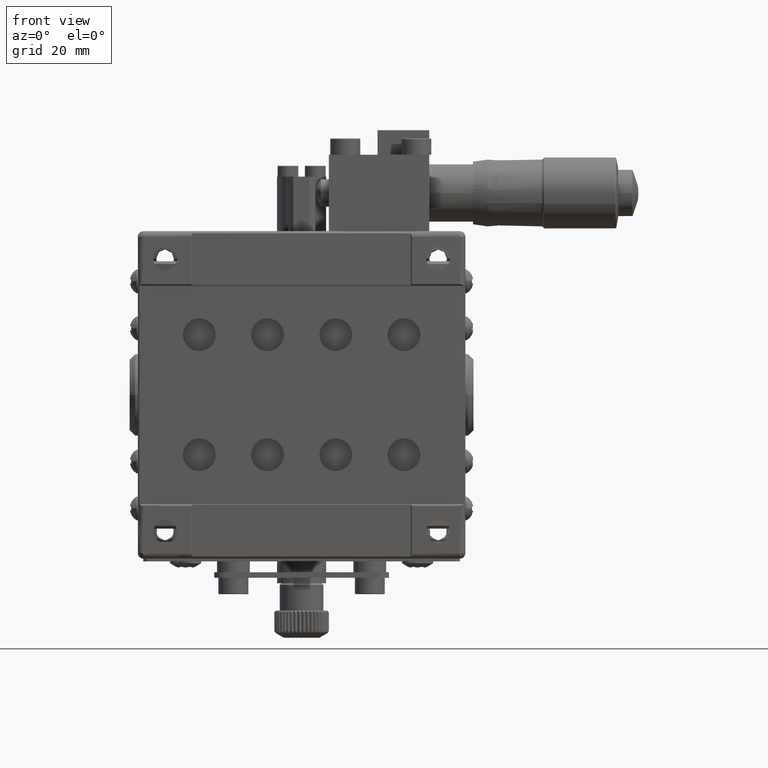
[diagram: clean part render]
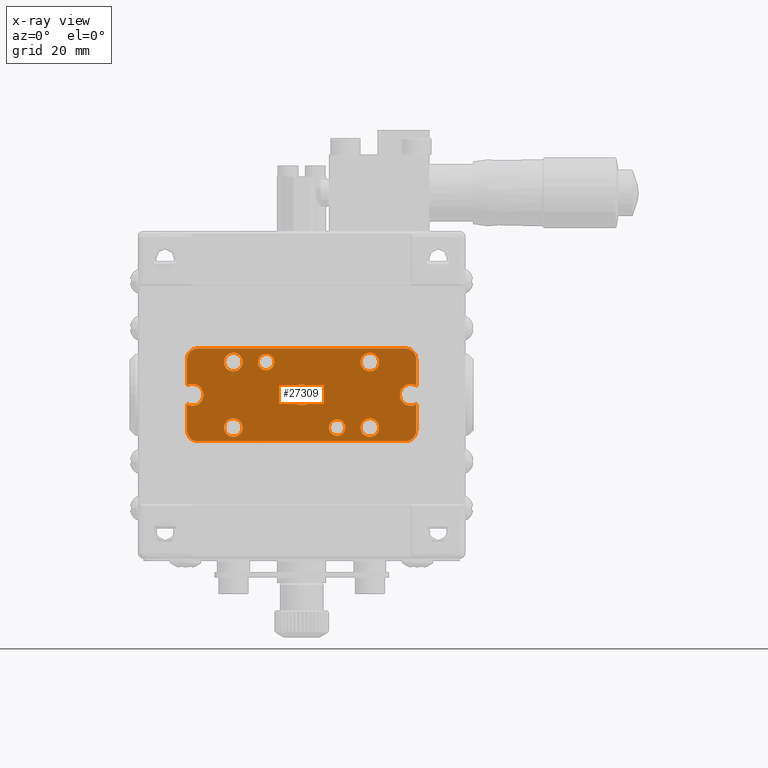
[diagram: x-ray — body ghosted, one internal face saturated and labeled with its STEP entity id]
A machine part, front view, then the same camera in x-ray: the body is ghosted and one INTERNAL B-rep face — a face not visible from any outside direction — is saturated and labeled: STEP entity #27309.
In plain terms, the highlighted planar face has unit normal (0, -1, 0).
Its self-contained STEP definition (entity closure, byte-faithful):
#76 = ORIENTED_EDGE ( 'NONE', *, *, #16630, .F. ) ;
#425 = EDGE_LOOP ( 'NONE', ( #31403, #67581 ) ) ;
#633 = EDGE_LOOP ( 'NONE', ( #48421, #48827 ) ) ;
#1058 = FACE_BOUND ( 'NONE', #68379, .T. ) ;
#1188 = CARTESIAN_POINT ( 'NONE',  ( -10.83651385598294148, -79.90000000000000568, 6.416496190602586580 ) ) ;
#1523 = CARTESIAN_POINT ( 'NONE',  ( -13.53610870402283695, -79.90000000000000568, 4.631945647988584547 ) ) ;
#1551 = CARTESIAN_POINT ( 'NONE',  ( -12.49999999999999467, -79.90000000000000568, -4.299999999999999822 ) ) ;
#1577 = CARTESIAN_POINT ( 'NONE',  ( -12.29965307866380897, -79.90000000000000568, 4.300000000000006040 ) ) ;
#1584 = CARTESIAN_POINT ( 'NONE',  ( -21.00000000000000355, -79.90000000000000568, 1.732050807568873863 ) ) ;
#1602 = CARTESIAN_POINT ( 'NONE',  ( 13.53610870402283339, -79.90000000000000568, -4.631945647988578330 ) ) ;
#1789 = CARTESIAN_POINT ( 'NONE',  ( -12.91649619060258836, -79.90000000000001990, -4.336513855982941479 ) ) ;
#1959 = CARTESIAN_POINT ( 'NONE',  ( -10.79999999999999893, -79.90000000000000568, 6.200346921336190142 ) ) ;
#1985 = CARTESIAN_POINT ( 'NONE',  ( 13.33502582190779151, -79.90000000000000568, -7.497794079595196060 ) ) ;
#1987 = CARTESIAN_POINT ( 'NONE',  ( 19.01761668010850315, -79.90000000000000568, -1.762110681876702722 ) ) ;
#2061 = CARTESIAN_POINT ( 'NONE',  ( -6.499999999999997335, -79.90000000000000568, 4.500000000000007994 ) ) ;
#2291 = CARTESIAN_POINT ( 'NONE',  ( -14.19999999999999396, -79.90000000000000568, 5.799653078663815187 ) ) ;
#2469 = CARTESIAN_POINT ( 'NONE',  ( 13.86805435201142167, -79.90000000000000568, 7.036108704022844051 ) ) ;
#2673 = CARTESIAN_POINT ( 'NONE',  ( -0.9332641538969292938, -79.90000000000000568, -1.674005147782867908 ) ) ;
#2763 = CARTESIAN_POINT ( 'NONE',  ( 18.23788931812329395, -79.90000000000000568, 0.9823833198915113973 ) ) ;
#3073 = CARTESIAN_POINT ( 'NONE',  ( -19.51000448164401746, -79.90000000000000568, 1.957042522373018123 ) ) ;
#3455 = CARTESIAN_POINT ( 'NONE',  ( -18.00000000000000355, -79.90000000000001990, 0.2357022603955210016 ) ) ;
#3663 = CARTESIAN_POINT ( 'NONE',  ( -11.66497417809221382, -79.90000000000000568, -4.502205920404796835 ) ) ;
#3708 = CARTESIAN_POINT ( 'NONE',  ( 5.585786437626912182, -79.90000000000000568, -7.207106781186543465 ) ) ;
#4166 = VERTEX_POINT ( 'NONE', #48046 ) ;
#4366 = CARTESIAN_POINT ( 'NONE',  ( -7.236787489918622640, -79.90000000000000568, 4.678416988592474013 ) ) ;
#4445 = CARTESIAN_POINT ( 'NONE',  ( 20.00000000000000000, -79.90000000000000568, -1.999999999999991340 ) ) ;
#4533 = CARTESIAN_POINT ( 'NONE',  ( -5.763212510081369366, -79.90000000000000568, 7.321583011407529540 ) ) ;
#4556 = CARTESIAN_POINT ( 'NONE',  ( 19.98238313581505921, -79.90000000000000568, -8.262110695583814390 ) ) ;
#4710 = CARTESIAN_POINT ( 'NONE',  ( 11.46389129597717549, -79.90000000000000568, -4.631945647988578330 ) ) ;
#4896 = CARTESIAN_POINT ( 'NONE',  ( 20.95704252237304388, -79.90000000000003411, 6.989995518355982540 ) ) ;
#4920 = CARTESIAN_POINT ( 'NONE',  ( -5.585786437626905965, -79.90000000000000568, 4.792893218813459200 ) ) ;
#5082 = EDGE_CURVE ( 'NONE', #30564, #59545, #37406, .T. ) ;
#5287 = CARTESIAN_POINT ( 'NONE',  ( 20.76211068187673803, -79.90000000000000568, 7.482383319891504847 ) ) ;
#5308 = CARTESIAN_POINT ( 'NONE',  ( -5.763212510081369366, -79.90000000000000568, 4.678416988592474013 ) ) ;
#6274 = CARTESIAN_POINT ( 'NONE',  ( -12.49999999999999645, -79.90000000000000568, -7.699999999999994849 ) ) ;
#6615 = EDGE_LOOP ( 'NONE', ( #21653, #48783 ) ) ;
#6998 = CARTESIAN_POINT ( 'NONE',  ( -12.08350380939740987, -79.90000000000000568, 4.336513855982946808 ) ) ;
#7200 = VERTEX_POINT ( 'NONE', #57799 ) ;
#7208 = CARTESIAN_POINT ( 'NONE',  ( -13.99779407959519872, -79.90000000000000568, -6.835025821907778187 ) ) ;
#7258 = EDGE_LOOP ( 'NONE', ( #71013, #43072 ) ) ;
#7393 = CARTESIAN_POINT ( 'NONE',  ( 12.50000000000000355, -79.90000000000001990, -4.299999999999999822 ) ) ;
#7593 = CARTESIAN_POINT ( 'NONE',  ( -12.49999999999999645, -79.90000000000000568, -7.699999999999994849 ) ) ;
#7604 = DIRECTION ( 'NONE',  ( -3.103381831646717575E-15, -0.000000000000000000, -1.000000000000000000 ) ) ;
#7775 = CARTESIAN_POINT ( 'NONE',  ( 12.91649619060260257, -79.90000000000000568, -7.663486144017054968 ) ) ;
#7966 = CARTESIAN_POINT ( 'NONE',  ( -13.33502582190777730, -79.90000000000000568, -4.502205920404797723 ) ) ;
#8078 = CARTESIAN_POINT ( 'NONE',  ( -13.33502582190777730, -79.90000000000000568, 7.497794079595206718 ) ) ;
#8184 = CARTESIAN_POINT ( 'NONE',  ( 20.17254603006834657, -79.90000000000000568, 2.000000000000004885 ) ) ;
#8232 = CARTESIAN_POINT ( 'NONE',  ( -20.00000000000000000, -79.90000000000000568, -1.999999999999990452 ) ) ;
#8400 = EDGE_CURVE ( 'NONE', #7200, #22042, #11125, .T. ) ;
#8431 = CARTESIAN_POINT ( 'NONE',  ( -18.99999999999998934, -79.90000000000001990, -8.499999999999964473 ) ) ;
#8540 = CARTESIAN_POINT ( 'NONE',  ( -20.76211045826631718, -79.90000000000000568, -7.482383202763269736 ) ) ;
#8647 = CARTESIAN_POINT ( 'NONE',  ( -19.48999551835600386, -79.90000000000001990, 8.457042522373015458 ) ) ;
#8682 = CARTESIAN_POINT ( 'NONE',  ( -11.00220592040479417, -79.90000000000000568, -5.164974178092218260 ) ) ;
#8864 = CARTESIAN_POINT ( 'NONE',  ( -19.01761668010849604, -79.90000000000000568, -1.762110681876702056 ) ) ;
#8925 = CARTESIAN_POINT ( 'NONE',  ( 14.16348614401706740, -79.90000000000000568, -5.583503809397412532 ) ) ;
#8926 = CARTESIAN_POINT ( 'NONE',  ( 18.78104858350253892, -79.90000000000000568, -1.609475708248722992 ) ) ;
#9026 = CARTESIAN_POINT ( 'NONE',  ( 14.16348614401707096, -79.90000000000000568, 5.583503809397420525 ) ) ;
#9442 = ORIENTED_EDGE ( 'NONE', *, *, #20196, .F. ) ;
#9460 = B_SPLINE_CURVE_WITH_KNOTS ( 'NONE', 3,
 ( #23467, #11065, #29250, #47090, #70723, #46712, #5287, #4896, #41275, #34680 ),
 .UNSPECIFIED., .F., .F.,
 ( 4, 2, 2, 2, 4 ),
 ( 0.000000000000000000, 0.7853981633974509435, 1.570796326794901887, 2.356194490192351054, 3.141592653589800221 ),
 .UNSPECIFIED. ) ;
#9664 = VERTEX_POINT ( 'NONE', #33940 ) ;
#9714 = CARTESIAN_POINT ( 'NONE',  ( 12.50000000000000355, -79.90000000000000568, -7.699999999999995737 ) ) ;
#9876 = CARTESIAN_POINT ( 'NONE',  ( 5.585786437626909517, -79.90000000000000568, -4.792893218813459200 ) ) ;
#9915 = ORIENTED_EDGE ( 'NONE', *, *, #19515, .T. ) ;
#9972 = CARTESIAN_POINT ( 'NONE',  ( -19.23570226039549169, -79.90000000000000568, -8.499999920527114838 ) ) ;
#11065 = CARTESIAN_POINT ( 'NONE',  ( 19.23570226039554143, -79.90000000000001990, 8.500000000000005329 ) ) ;
#11125 = B_SPLINE_CURVE_WITH_KNOTS ( 'NONE', 3,
 ( #21763, #33735, #71300, #18228, #29454, #35277, #48433, #41856, #70925, #17853, #29842, #65481, #76350, #41480, #72053, #65108, #64729, #35662 ),
 .UNSPECIFIED., .F., .F.,
 ( 4, 2, 2, 2, 2, 2, 2, 2, 4 ),
 ( 0.000000000000000000, 0.5890486225480825455, 1.178097245096165091, 1.767145867644249080, 2.356194490192333291, 2.945243112740417057, 3.534291735288501712, 4.123340357836584147, 4.712388980384666581 ),
 .UNSPECIFIED. ) ;
#12287 = B_SPLINE_CURVE_WITH_KNOTS ( 'NONE', 3,
 ( #74456, #21030, #68661, #27584, #20273, #26464, #50473, #68285, #15209, #44656, #69038, #38839, #26833, #15588, #14822, #21411, #43895, #73704 ),
 .UNSPECIFIED., .F., .F.,
 ( 4, 2, 2, 2, 2, 2, 2, 2, 4 ),
 ( 0.000000000000000000, 0.6675884388878300379, 1.335176877775660076, 2.002765316663490225, 2.670353755551320152, 3.337942194439150079, 4.005530633326980450, 4.673119072214809933, 5.340707511102640304 ),
 .UNSPECIFIED. ) ;
#12704 = ORIENTED_EDGE ( 'NONE', *, *, #45665, .F. ) ;
#13188 = CARTESIAN_POINT ( 'NONE',  ( -12.49999999999999645, -79.90000000000000568, 7.700000000000000178 ) ) ;
#13424 = FACE_BOUND ( 'NONE', #633, .T. ) ;
#13480 = VERTEX_POINT ( 'NONE', #42674 ) ;
#13506 = CARTESIAN_POINT ( 'NONE',  ( -1.529001922836286331, -79.90000000000000568, 1.158003845672582521 ) ) ;
#13591 = DIRECTION ( 'NONE',  ( -1.862029098988050188E-15, -0.000000000000000000, 1.000000000000000000 ) ) ;
#13900 = CARTESIAN_POINT ( 'NONE',  ( -13.86805435201141279, -79.90000000000000568, 4.963891295977165719 ) ) ;
#14125 = CARTESIAN_POINT ( 'NONE',  ( -11.46389129597715772, -79.90000000000000568, -7.368054352011416341 ) ) ;
#14175 = CARTESIAN_POINT ( 'NONE',  ( -13.33502582190777730, -79.90000000000000568, -7.497794079595197836 ) ) ;
#14199 = DIRECTION ( 'NONE',  ( 1.000000000000000000, 0.000000000000000000, 0.000000000000000000 ) ) ;
#14390 = CARTESIAN_POINT ( 'NONE',  ( 20.99999999999999645, -79.90000000000000568, 1.732050807568883855 ) ) ;
#14472 = CARTESIAN_POINT ( 'NONE',  ( 12.91649619060259546, -79.90000000000001990, 7.663486144017062074 ) ) ;
#14478 = CARTESIAN_POINT ( 'NONE',  ( -20.60947570824874120, -79.90000000000000568, 7.718951416497460194 ) ) ;
#14514 = CARTESIAN_POINT ( 'NONE',  ( -10.83651385598294326, -79.90000000000000568, -6.416496190602582139 ) ) ;
#14666 = CARTESIAN_POINT ( 'NONE',  ( -13.99779407959519872, -79.90000000000000568, 6.835025821907782628 ) ) ;
#14763 = CARTESIAN_POINT ( 'NONE',  ( 20.85057075463865672, -79.90000000000001990, 1.818323822603056472 ) ) ;
#14822 = CARTESIAN_POINT ( 'NONE',  ( 11.66497417809222625, -79.90000000000000568, 7.497794079595206718 ) ) ;
#14840 = CARTESIAN_POINT ( 'NONE',  ( 14.20000000000000462, -79.90000000000000568, 6.200346921336190142 ) ) ;
#14880 = CARTESIAN_POINT ( 'NONE',  ( -10.79999999999999893, -79.90000000000000568, -5.799653078663809858 ) ) ;
#14934 = CARTESIAN_POINT ( 'NONE',  ( 5.000000000000007994, -79.90000000000000568, -5.823223304703365244 ) ) ;
#15066 = CARTESIAN_POINT ( 'NONE',  ( -19.99999999999999645, -79.90000000000000568, 2.000000000000003553 ) ) ;
#15204 = CARTESIAN_POINT ( 'NONE',  ( -7.707106781186539912, -79.89999999999999147, 5.085786437626908629 ) ) ;
#15209 = CARTESIAN_POINT ( 'NONE',  ( 10.80000000000000249, -79.90000000000000568, 5.799653078663815187 ) ) ;
#15307 = ORIENTED_EDGE ( 'NONE', *, *, #56655, .F. ) ;
#15536 = CARTESIAN_POINT ( 'NONE',  ( 11.13194564798859076, -79.90000000000000568, -4.963891295977159501 ) ) ;
#15588 = CARTESIAN_POINT ( 'NONE',  ( 11.46389129597717549, -79.90000000000000568, 7.368054352011421670 ) ) ;
#15912 = CARTESIAN_POINT ( 'NONE',  ( 10.80000000000000249, -79.90000000000000568, -5.799653078663809858 ) ) ;
#15942 = B_SPLINE_CURVE_WITH_KNOTS ( 'NONE', 3,
 ( #4445, #73496, #16426, #27656, #40055, #28426 ),
 .UNSPECIFIED., .F., .F.,
 ( 4, 2, 4 ),
 ( 0.000000000000000000, 0.5235987755982889347, 1.047197551196577869 ),
 .UNSPECIFIED. ) ;
#16348 = CARTESIAN_POINT ( 'NONE',  ( -7.967781891779749159, -79.90000000000000568, 6.367496638766986017 ) ) ;
#16370 = CARTESIAN_POINT ( 'NONE',  ( 20.00000000000000000, -79.90000000000000568, 2.000000000000003553 ) ) ;
#16426 = CARTESIAN_POINT ( 'NONE',  ( 20.34808269351821153, -79.90000000000000568, -1.977283884192705399 ) ) ;
#16630 = EDGE_CURVE ( 'NONE', #68446, #31293, #72006, .T. ) ;
#16831 = CARTESIAN_POINT ( 'NONE',  ( -12.49999999999999645, -79.90000000000000568, 4.300000000000003375 ) ) ;
#16935 = CARTESIAN_POINT ( 'NONE',  ( 19.23570222065905355, -79.90000000000000568, -8.499999999999994671 ) ) ;
#17283 = CARTESIAN_POINT ( 'NONE',  ( -6.323223304703364356, -79.90000000000000568, 7.499999999999995559 ) ) ;
#17686 = EDGE_CURVE ( 'NONE', #4166, #9664, #56327, .T. ) ;
#17853 = CARTESIAN_POINT ( 'NONE',  ( 7.999999999999989342, -79.90000000000000568, -5.823223304703361691 ) ) ;
#18228 = CARTESIAN_POINT ( 'NONE',  ( 7.236787489918624416, -79.90000000000000568, -7.321583011407528652 ) ) ;
#18782 = CARTESIAN_POINT ( 'NONE',  ( 20.99999999999996803, -79.90000000000000568, -6.500000000000004441 ) ) ;
#18851 = CARTESIAN_POINT ( 'NONE',  ( 20.99999999999996803, -79.90000000000000568, -6.977994919243120542 ) ) ;
#18995 = CARTESIAN_POINT ( 'NONE',  ( -12.29965307866381252, -79.90000000000000568, 7.700000000000002842 ) ) ;
#19515 = EDGE_CURVE ( 'NONE', #28011, #31293, #35579, .T. ) ;
#19551 = ORIENTED_EDGE ( 'NONE', *, *, #65469, .T. ) ;
#19599 = ORIENTED_EDGE ( 'NONE', *, *, #35335, .F. ) ;
#19795 = CARTESIAN_POINT ( 'NONE',  ( 18.39052429175127301, -79.90000000000000568, 1.218951416497465967 ) ) ;
#19899 = CARTESIAN_POINT ( 'NONE',  ( 13.33502582190778618, -79.90000000000000568, 7.497794079595206718 ) ) ;
#19904 = CARTESIAN_POINT ( 'NONE',  ( -21.00000000000001421, -79.90000000000000568, 6.735702260395516561 ) ) ;
#20009 = B_SPLINE_CURVE_WITH_KNOTS ( 'NONE', 3,
 ( #37210, #43421, #7775, #1985, #31378, #20568, #73615, #60836, #49627, #43030, #8925, #55052, #67048, #1602, #25625, #73243, #72847, #7393 ),
 .UNSPECIFIED., .F., .F.,
 ( 4, 2, 2, 2, 2, 2, 2, 2, 4 ),
 ( 0.000000000000000000, 0.6675884388878300379, 1.335176877775660076, 2.002765316663490225, 2.670353755551320152, 3.337942194439150079, 4.005530633326980450, 4.673119072214809933, 5.340707511102640304 ),
 .UNSPECIFIED. ) ;
#20014 = CARTESIAN_POINT ( 'NONE',  ( -5.817072295949906225E-17, -79.90000000000000568, 1.899999999999992806 ) ) ;
#20123 = CARTESIAN_POINT ( 'NONE',  ( -18.00000000000000355, -79.90000000000001990, -0.2357022603955102880 ) ) ;
#20196 = EDGE_CURVE ( 'NONE', #76412, #58157, #65076, .T. ) ;
#20273 = CARTESIAN_POINT ( 'NONE',  ( 11.46389129597716483, -79.90000000000000568, 4.631945647988584547 ) ) ;
#20295 = CARTESIAN_POINT ( 'NONE',  ( -21.00000000000001421, -79.90000000000000568, 6.500000000000000000 ) ) ;
#20377 = CARTESIAN_POINT ( 'NONE',  ( -12.70034692133618748, -79.90000000000000568, -4.300000000000000711 ) ) ;
#20402 = FACE_OUTER_BOUND ( 'NONE', #58222, .T. ) ;
#20568 = CARTESIAN_POINT ( 'NONE',  ( 13.86805435201142345, -79.90000000000000568, -7.036108704022836946 ) ) ;
#20570 = CARTESIAN_POINT ( 'NONE',  ( 18.23788931812329750, -79.90000000000000568, -0.9823833198915029596 ) ) ;
#20593 = CARTESIAN_POINT ( 'NONE',  ( 20.00000000000000000, -79.90000000000000568, 2.000000000000003553 ) ) ;
#20885 = CARTESIAN_POINT ( 'NONE',  ( -18.39052429175126946, -79.90000000000000568, 1.218951416497465745 ) ) ;
#21030 = CARTESIAN_POINT ( 'NONE',  ( 12.29965307866382140, -79.90000000000000568, 4.300000000000006040 ) ) ;
#21057 = EDGE_CURVE ( 'NONE', #55288, #65067, #43665, .T. ) ;
#21134 = CARTESIAN_POINT ( 'NONE',  ( 5.032218108220255282, -79.90000000000000568, -5.632503361233013983 ) ) ;
#21268 = CARTESIAN_POINT ( 'NONE',  ( -18.04295747762698809, -79.90000000000000568, -0.4899955183559770999 ) ) ;
#21406 = CARTESIAN_POINT ( 'NONE',  ( -6.867496638766981576, -79.90000000000000568, 4.532218108220250841 ) ) ;
#21411 = CARTESIAN_POINT ( 'NONE',  ( 12.08350380939742408, -79.90000000000001990, 7.663486144017062074 ) ) ;
#21428 = CARTESIAN_POINT ( 'NONE',  ( 12.70034692133619814, -79.90000000000000568, 4.300000000000006040 ) ) ;
#21653 = ORIENTED_EDGE ( 'NONE', *, *, #55769, .T. ) ;
#21713 = VECTOR ( 'NONE', #39057, 1000.000000000000000 ) ;
#21763 = CARTESIAN_POINT ( 'NONE',  ( 6.499999999999997335, -79.90000000000000568, -7.499999999999992895 ) ) ;
#21947 = CARTESIAN_POINT ( 'NONE',  ( -5.000000000000004441, -79.90000000000000568, 6.176776695296633868 ) ) ;
#21968 = EDGE_CURVE ( 'NONE', #52154, #65174, #40783, .T. ) ;
#22030 = ORIENTED_EDGE ( 'NONE', *, *, #57268, .T. ) ;
#22042 = VERTEX_POINT ( 'NONE', #68512 ) ;
#22157 = CARTESIAN_POINT ( 'NONE',  ( -7.414213562373092259, -79.90000000000000568, 7.207106781186541689 ) ) ;
#22203 = CARTESIAN_POINT ( 'NONE',  ( 1.158003845672585408, -79.90000000000000568, -1.529001922836287664 ) ) ;
#22277 = CARTESIAN_POINT ( 'NONE',  ( 6.132503361233016648, -79.90000000000001990, -4.532218108220249064 ) ) ;
#22974 = CARTESIAN_POINT ( 'NONE',  ( 1.158003845672580745, -79.90000000000000568, 1.529001922836285221 ) ) ;
#23045 = EDGE_LOOP ( 'NONE', ( #40839, #56066 ) ) ;
#23115 = CARTESIAN_POINT ( 'NONE',  ( -6.132503361233013095, -79.90000000000001990, 7.467781891779753600 ) ) ;
#23231 = ORIENTED_EDGE ( 'NONE', *, *, #60604, .F. ) ;
#23283 = CARTESIAN_POINT ( 'NONE',  ( 10.83651385598294858, -79.90000000000000568, -6.416496190602583916 ) ) ;
#23467 = CARTESIAN_POINT ( 'NONE',  ( 19.00000000000001776, -79.90000000000001990, 8.500000000000003553 ) ) ;
#23984 = B_SPLINE_CURVE_WITH_KNOTS ( 'NONE', 3,
 ( #74611, #40916, #27368, #5308, #4920, #52174, #45958, #57967, #52557, #21947, #33165, #39757, #62987, #69188, #4533, #23115, #17283, #27738 ),
 .UNSPECIFIED., .F., .F.,
 ( 4, 2, 2, 2, 2, 2, 2, 2, 4 ),
 ( 0.000000000000000000, 0.5890486225480833227, 1.178097245096166645, 1.767145867644249968, 2.356194490192333291, 2.945243112740416613, 3.534291735288499936, 4.123340357836583259, 4.712388980384666581 ),
 .UNSPECIFIED. ) ;
#24235 = CARTESIAN_POINT ( 'NONE',  ( 12.50000000000000533, -79.90000000000000568, 7.699999999999999289 ) ) ;
#24691 = EDGE_CURVE ( 'NONE', #26202, #26735, #23984, .T. ) ;
#24793 = ORIENTED_EDGE ( 'NONE', *, *, #5082, .F. ) ;
#24825 = CARTESIAN_POINT ( 'NONE',  ( -11.13194564798858188, -79.90000000000000568, 7.036108704022844051 ) ) ;
#24911 = VECTOR ( 'NONE', #7604, 1000.000000000000000 ) ;
#25053 = CARTESIAN_POINT ( 'NONE',  ( -12.49999999999999467, -79.90000000000000568, -4.299999999999999822 ) ) ;
#25161 = CARTESIAN_POINT ( 'NONE',  ( -12.70034692133618748, -79.90000000000000568, 7.700000000000002842 ) ) ;
#25625 = CARTESIAN_POINT ( 'NONE',  ( 13.33502582190778618, -79.90000000000000568, -4.502205920404796835 ) ) ;
#25627 = CARTESIAN_POINT ( 'NONE',  ( 18.39052429175126946, -79.90000000000000568, -1.218951416497453311 ) ) ;
#25821 = CARTESIAN_POINT ( 'NONE',  ( 0.4654957424381860331, -79.90000000000000568, 1.859190396254355671 ) ) ;
#25918 = CARTESIAN_POINT ( 'NONE',  ( -0.4654957424381805375, -79.90000000000000568, -1.859190396254352784 ) ) ;
#26029 = CARTESIAN_POINT ( 'NONE',  ( 20.68719348689188209, -79.90000000000001990, 1.886419420963565408 ) ) ;
#26107 = CARTESIAN_POINT ( 'NONE',  ( 13.53610870402283339, -79.90000000000000568, 7.368054352011421670 ) ) ;
#26112 = CARTESIAN_POINT ( 'NONE',  ( -20.95704252237302256, -79.90000000000000568, 6.989995518355979875 ) ) ;
#26202 = VERTEX_POINT ( 'NONE', #2061 ) ;
#26298 = CARTESIAN_POINT ( 'NONE',  ( -1.674005147782865910, -79.90000000000001990, 0.9332641538969278505 ) ) ;
#26464 = CARTESIAN_POINT ( 'NONE',  ( 11.13194564798858543, -79.90000000000000568, 4.963891295977165719 ) ) ;
#26672 = CARTESIAN_POINT ( 'NONE',  ( -12.91649619060258303, -79.90000000000000568, 4.336513855982946808 ) ) ;
#26735 = VERTEX_POINT ( 'NONE', #74348 ) ;
#26750 = CARTESIAN_POINT ( 'NONE',  ( 18.04295747762699520, -79.90000000000000568, -0.4899955183559790428 ) ) ;
#26833 = CARTESIAN_POINT ( 'NONE',  ( 11.13194564798859076, -79.90000000000000568, 7.036108704022844051 ) ) ;
#26895 = CARTESIAN_POINT ( 'NONE',  ( -12.08350380939740987, -79.90000000000000568, -7.663486144017054968 ) ) ;
#27055 = CARTESIAN_POINT ( 'NONE',  ( -19.76429773960449054, -79.90000000000001990, -1.999999999999991340 ) ) ;
#27309 = ADVANCED_FACE ( 'NONE', ( #20402, #44017, #42486, #1058, #73062, #61433, #60668, #13424 ), #30826, .T. ) ;
#27316 = CARTESIAN_POINT ( 'NONE',  ( 5.763212510081372919, -79.90000000000000568, -4.678416988592474013 ) ) ;
#27368 = CARTESIAN_POINT ( 'NONE',  ( -6.132503361233013095, -79.90000000000000568, 4.532218108220251729 ) ) ;
#27584 = CARTESIAN_POINT ( 'NONE',  ( 11.66497417809223691, -79.90000000000000568, 4.502205920404802164 ) ) ;
#27656 = CARTESIAN_POINT ( 'NONE',  ( 20.68719348689186432, -79.90000000000000568, -1.886419420963556082 ) ) ;
#27738 = CARTESIAN_POINT ( 'NONE',  ( -6.499999999999997335, -79.90000000000000568, 7.499999999999992895 ) ) ;
#27961 = CARTESIAN_POINT ( 'NONE',  ( -7.821583011407525987, -79.90000000000000568, 5.263212510081372919 ) ) ;
#28011 = VERTEX_POINT ( 'NONE', #40322 ) ;
#28147 = CARTESIAN_POINT ( 'NONE',  ( 19.48999542761320924, -79.90000000000001990, -8.457042522769841142 ) ) ;
#28271 = LINE ( 'NONE', #68960, #28425 ) ;
#28330 = ORIENTED_EDGE ( 'NONE', *, *, #41483, .F. ) ;
#28379 = CARTESIAN_POINT ( 'NONE',  ( 1.859190396254353228, -79.90000000000000568, -0.4654957424381813702 ) ) ;
#28393 = ORIENTED_EDGE ( 'NONE', *, *, #75265, .F. ) ;
#28425 = VECTOR ( 'NONE', #34462, 1000.000000000000000 ) ;
#28426 = CARTESIAN_POINT ( 'NONE',  ( 20.99999999999998224, -79.90000000000000568, -1.732050807568868755 ) ) ;
#28763 = CARTESIAN_POINT ( 'NONE',  ( 1.859190396254356781, -79.90000000000000568, 0.4654957424381834241 ) ) ;
#29250 = CARTESIAN_POINT ( 'NONE',  ( 19.48999551835601096, -79.90000000000000568, 8.457042522373017235 ) ) ;
#29454 = CARTESIAN_POINT ( 'NONE',  ( 7.414213562373094035, -79.90000000000000568, -7.207106781186543465 ) ) ;
#29538 = VERTEX_POINT ( 'NONE', #60231 ) ;
#29842 = CARTESIAN_POINT ( 'NONE',  ( 7.967781891779759817, -79.90000000000000568, -5.632503361233015760 ) ) ;
#30564 = VERTEX_POINT ( 'NONE', #6274 ) ;
#30594 = CARTESIAN_POINT ( 'NONE',  ( -11.00220592040479595, -79.90000000000000568, 5.164974178092223589 ) ) ;
#30724 = ORIENTED_EDGE ( 'NONE', *, *, #37245, .F. ) ;
#30803 = CARTESIAN_POINT ( 'NONE',  ( -13.53610870402283695, -79.90000000000000568, -7.368054352011419006 ) ) ;
#30826 = PLANE ( 'NONE',  #58124 ) ;
#30927 = B_SPLINE_CURVE_WITH_KNOTS ( 'NONE', 3,
 ( #38727, #62332, #73596, #61581, #56165, #74724 ),
 .UNSPECIFIED., .F., .F.,
 ( 4, 2, 4 ),
 ( 0.000000000000000000, 0.5235987755982969283, 1.047197551196593857 ),
 .UNSPECIFIED. ) ;
#31139 = EDGE_CURVE ( 'NONE', #57224, #75779, #65191, .T. ) ;
#31293 = VERTEX_POINT ( 'NONE', #16370 ) ;
#31300 = CARTESIAN_POINT ( 'NONE',  ( -12.91649619060258836, -79.90000000000001990, 7.663486144017062074 ) ) ;
#31352 = CARTESIAN_POINT ( 'NONE',  ( -11.66497417809221027, -79.90000000000000568, 4.502205920404802164 ) ) ;
#31378 = CARTESIAN_POINT ( 'NONE',  ( 13.53610870402284938, -79.90000000000000568, -7.368054352011416341 ) ) ;
#31380 = CARTESIAN_POINT ( 'NONE',  ( 19.76429773960449054, -79.90000000000000568, -1.999999999999993561 ) ) ;
#31403 = ORIENTED_EDGE ( 'NONE', *, *, #60158, .F. ) ;
#31512 = EDGE_CURVE ( 'NONE', #58157, #71917, #28271, .T. ) ;
#31575 = CARTESIAN_POINT ( 'NONE',  ( -14.19999999999999574, -79.90000000000000568, -5.799653078663809858 ) ) ;
#31690 = EDGE_CURVE ( 'NONE', #69152, #47247, #49494, .T. ) ;
#31694 = CARTESIAN_POINT ( 'NONE',  ( -14.16348614401705852, -79.90000000000000568, 5.583503809397420525 ) ) ;
#31701 = EDGE_CURVE ( 'NONE', #65067, #55288, #32781, .T. ) ;
#31750 = CARTESIAN_POINT ( 'NONE',  ( -10.80000000000000071, -79.90000000000000568, 5.799653078663815187 ) ) ;
#31775 = CARTESIAN_POINT ( 'NONE',  ( 19.51000448164402101, -79.90000000000001990, 1.957042522373015903 ) ) ;
#31958 = CARTESIAN_POINT ( 'NONE',  ( -13.99779407959519872, -79.90000000000000568, -5.164974178092218260 ) ) ;
#32310 = CARTESIAN_POINT ( 'NONE',  ( -11.46389129597715772, -79.90000000000000568, -4.631945647988578330 ) ) ;
#32542 = CARTESIAN_POINT ( 'NONE',  ( 18.00000000000001066, -79.90000000000000568, 0.2357022603955208906 ) ) ;
#32564 = CARTESIAN_POINT ( 'NONE',  ( 20.34808269351819021, -79.89999999999997726, 1.977283884192715835 ) ) ;
#32646 = CARTESIAN_POINT ( 'NONE',  ( -19.98238331989152172, -79.90000000000000568, 8.262110681876716711 ) ) ;
#32781 = B_SPLINE_CURVE_WITH_KNOTS ( 'NONE', 3,
 ( #68114, #38292, #25918, #2673, #37516, #61523, #56106, #49542, #55728, #48772, #54974, #26298, #13506, #73912, #61897, #72392, #61139, #67741 ),
 .UNSPECIFIED., .F., .F.,
 ( 4, 2, 2, 2, 2, 2, 2, 2, 4 ),
 ( -5.969026041820584716, -5.222897786593011737, -4.476769531365437871, -3.730641276137864892, -2.984513020910292358, -2.238384765682719379, -1.492256510455145957, -0.7461282552275720903, 0.000000000000000000 ),
 .UNSPECIFIED. ) ;
#33146 = ORIENTED_EDGE ( 'NONE', *, *, #31512, .F. ) ;
#33165 = CARTESIAN_POINT ( 'NONE',  ( -5.032218108220247288, -79.90000000000000568, 6.367496638766985129 ) ) ;
#33333 = CARTESIAN_POINT ( 'NONE',  ( 12.29965307866382496, -79.90000000000000568, -4.300000000000000711 ) ) ;
#33420 = EDGE_CURVE ( 'NONE', #57224, #75779, #12287, .T. ) ;
#33584 = CARTESIAN_POINT ( 'NONE',  ( -20.99999999999998934, -79.90000000000000568, -6.499999999999968914 ) ) ;
#33716 = CARTESIAN_POINT ( 'NONE',  ( 12.50000000000000355, -79.90000000000001990, -4.299999999999999822 ) ) ;
#33735 = CARTESIAN_POINT ( 'NONE',  ( 6.676776695296632980, -79.90000000000000568, -7.499999999999992895 ) ) ;
#33940 = CARTESIAN_POINT ( 'NONE',  ( 12.50000000000000355, -79.90000000000001990, -4.299999999999999822 ) ) ;
#34381 = CARTESIAN_POINT ( 'NONE',  ( -21.00000000000001421, -79.90000000000000568, 6.977994919243111660 ) ) ;
#34462 = DIRECTION ( 'NONE',  ( 1.000000000000000000, -0.000000000000000000, -0.000000000000000000 ) ) ;
#34569 = CARTESIAN_POINT ( 'NONE',  ( -2.695770409715654541E-16, -79.90000000000000568, -1.899999999999993250 ) ) ;
#34680 = CARTESIAN_POINT ( 'NONE',  ( 21.00000000000001066, -79.90000000000000568, 6.499999999999995559 ) ) ;
#34966 = CARTESIAN_POINT ( 'NONE',  ( 1.674005147782870795, -79.90000000000000568, 0.9332641538969297379 ) ) ;
#35046 = B_SPLINE_CURVE_WITH_KNOTS ( 'NONE', 3,
 ( #57986, #70377, #57606, #51414, #64572, #47137, #4556, #28147, #16935, #70767 ),
 .UNSPECIFIED., .F., .F.,
 ( 4, 2, 2, 2, 4 ),
 ( 0.000000000000000000, 0.7853981633974465026, 1.570796326794893005, 2.356194490192339508, 3.141592653589786011 ),
 .UNSPECIFIED. ) ;
#35194 = VERTEX_POINT ( 'NONE', #8431 ) ;
#35277 = CARTESIAN_POINT ( 'NONE',  ( 7.707106781186544353, -79.90000000000003411, -6.914213562373092259 ) ) ;
#35335 = EDGE_CURVE ( 'NONE', #45648, #50608, #35046, .T. ) ;
#35579 = B_SPLINE_CURVE_WITH_KNOTS ( 'NONE', 3,
 ( #66654, #31380, #55054, #1987, #8926, #25627, #20570, #26750, #49239, #32542, #72849, #2763, #19795, #55814, #61603, #31775, #49629, #43423 ),
 .UNSPECIFIED., .F., .F.,
 ( 4, 2, 2, 2, 2, 2, 2, 2, 4 ),
 ( 0.000000000000000000, 0.7853981633974476129, 1.570796326794895226, 2.356194490192343061, 3.141592653589790451, 3.926990816987237842, 4.712388980384686121, 5.497787143782133512, 6.283185307179580903 ),
 .UNSPECIFIED. ) ;
#35662 = CARTESIAN_POINT ( 'NONE',  ( 6.499999999999998224, -79.90000000000000568, -4.500000000000007105 ) ) ;
#35672 = ORIENTED_EDGE ( 'NONE', *, *, #31139, .F. ) ;
#36287 = CARTESIAN_POINT ( 'NONE',  ( -25.20120000000002136, -79.90000000000000568, -10.20119999999999649 ) ) ;
#36642 = CARTESIAN_POINT ( 'NONE',  ( -13.53610870402284405, -79.90000000000000568, -4.631945647988578330 ) ) ;
#37126 = CARTESIAN_POINT ( 'NONE',  ( -14.16348614401705674, -79.90000000000000568, 6.416496190602586580 ) ) ;
#37210 = CARTESIAN_POINT ( 'NONE',  ( 12.50000000000000355, -79.90000000000000568, -7.699999999999995737 ) ) ;
#37245 = EDGE_CURVE ( 'NONE', #61303, #45648, #42845, .T. ) ;
#37318 = CARTESIAN_POINT ( 'NONE',  ( 12.70034692133619991, -79.90000000000000568, 7.700000000000002842 ) ) ;
#37406 = B_SPLINE_CURVE_WITH_KNOTS ( 'NONE', 3,
 ( #50911, #44715, #26895, #51292, #14125, #43953, #67584, #14514, #57100, #14880, #38134, #8682, #68347, #32310, #3663, #74516, #38899, #62511 ),
 .UNSPECIFIED., .F., .F.,
 ( 4, 2, 2, 2, 2, 2, 2, 2, 4 ),
 ( 0.000000000000000000, 0.6675884388878300379, 1.335176877775660076, 2.002765316663490225, 2.670353755551320152, 3.337942194439150079, 4.005530633326980450, 4.673119072214809933, 5.340707511102640304 ),
 .UNSPECIFIED. ) ;
#37412 = CARTESIAN_POINT ( 'NONE',  ( -13.86805435201141279, -79.90000000000000568, -7.036108704022836946 ) ) ;
#37516 = CARTESIAN_POINT ( 'NONE',  ( -1.158003845672584742, -79.90000000000000568, -1.529001922836287886 ) ) ;
#37573 = CARTESIAN_POINT ( 'NONE',  ( -10.83651385598294326, -79.90000000000000568, 5.583503809397420525 ) ) ;
#37734 = B_SPLINE_CURVE_WITH_KNOTS ( 'NONE', 3,
 ( #7593, #49815, #61406, #14175, #30803, #37412, #7208, #42835, #37795, #31575, #55611, #31958, #73427, #36642, #7966, #1789, #20377, #25053 ),
 .UNSPECIFIED., .F., .F.,
 ( 4, 2, 2, 2, 2, 2, 2, 2, 4 ),
 ( 0.000000000000000000, 0.6675884388878300379, 1.335176877775660076, 2.002765316663490225, 2.670353755551320152, 3.337942194439150079, 4.005530633326980450, 4.673119072214809933, 5.340707511102640304 ),
 .UNSPECIFIED. ) ;
#37795 = CARTESIAN_POINT ( 'NONE',  ( -14.19999999999999396, -79.90000000000000568, -6.200346921336186590 ) ) ;
#37913 = CARTESIAN_POINT ( 'NONE',  ( -12.49999999999999645, -79.90000000000000568, 7.700000000000000178 ) ) ;
#37932 = CARTESIAN_POINT ( 'NONE',  ( -20.00000000000000000, -79.90000000000000568, -1.999999999999990452 ) ) ;
#38101 = CARTESIAN_POINT ( 'NONE',  ( -20.21895141649747885, -79.90000000000000568, 8.109475708248730541 ) ) ;
#38134 = CARTESIAN_POINT ( 'NONE',  ( -10.83651385598294148, -79.90000000000000568, -5.583503809397412532 ) ) ;
#38292 = CARTESIAN_POINT ( 'NONE',  ( -0.2239171473757390618, -79.90000000000000568, -1.899999999999993694 ) ) ;
#38310 = CARTESIAN_POINT ( 'NONE',  ( -18.78104858350254602, -79.90000000000004832, -1.609475708248723436 ) ) ;
#38346 = CARTESIAN_POINT ( 'NONE',  ( -12.49999999999999645, -79.90000000000000568, 4.300000000000003375 ) ) ;
#38479 = CARTESIAN_POINT ( 'NONE',  ( 13.99779407959521116, -79.90000000000000568, 6.835025821907782628 ) ) ;
#38727 = CARTESIAN_POINT ( 'NONE',  ( -20.00000000000000000, -79.90000000000000568, -1.999999999999990452 ) ) ;
#38834 = CARTESIAN_POINT ( 'NONE',  ( -6.499999999999997335, -79.90000000000000568, 7.499999999999992895 ) ) ;
#38839 = CARTESIAN_POINT ( 'NONE',  ( 11.00220592040480305, -79.90000000000000568, 6.835025821907782628 ) ) ;
#38899 = CARTESIAN_POINT ( 'NONE',  ( -12.29965307866381252, -79.90000000000000568, -4.300000000000000711 ) ) ;
#39057 = DIRECTION ( 'NONE',  ( -1.862029098988036777E-15, -0.000000000000000000, 1.000000000000000000 ) ) ;
#39066 = CARTESIAN_POINT ( 'NONE',  ( -19.51000448164401746, -79.90000000000001990, -1.957042522373002136 ) ) ;
#39170 = CARTESIAN_POINT ( 'NONE',  ( 11.00220592040480305, -79.90000000000000568, -6.835025821907778187 ) ) ;
#39326 = CARTESIAN_POINT ( 'NONE',  ( 5.292893218813457423, -79.90000000000000568, -6.914213562373094035 ) ) ;
#39698 = LINE ( 'NONE', #57140, #46795 ) ;
#39707 = CARTESIAN_POINT ( 'NONE',  ( 5.032218108220256170, -79.90000000000000568, -6.367496638766987793 ) ) ;
#39757 = CARTESIAN_POINT ( 'NONE',  ( -5.178416988592472237, -79.90000000000000568, 6.736787489918627081 ) ) ;
#39926 = CARTESIAN_POINT ( 'NONE',  ( 10.80000000000000249, -79.90000000000000568, -6.200346921336186590 ) ) ;
#40055 = CARTESIAN_POINT ( 'NONE',  ( 20.85057075463864251, -79.90000000000000568, -1.818323822603049589 ) ) ;
#40188 = B_SPLINE_CURVE_WITH_KNOTS ( 'NONE', 3,
 ( #1584, #47694, #42631, #65880, #54268, #65123 ),
 .UNSPECIFIED., .F., .F.,
 ( 4, 2, 4 ),
 ( 0.000000000000000000, 0.5235987755983009251, 1.047197551196601850 ),
 .UNSPECIFIED. ) ;
#40261 = CARTESIAN_POINT ( 'NONE',  ( 20.99999999999998224, -79.90000000000000568, -1.732050807568868755 ) ) ;
#40322 = CARTESIAN_POINT ( 'NONE',  ( 20.00000000000000000, -79.90000000000000568, -1.999999999999991340 ) ) ;
#40783 = B_SPLINE_CURVE_WITH_KNOTS ( 'NONE', 3,
 ( #15066, #61921, #3073, #56887, #50700, #20885, #61544, #43741, #3455, #20123, #21268, #44130, #68886, #38310, #8864, #39066, #27055, #37932 ),
 .UNSPECIFIED., .F., .F.,
 ( 4, 2, 2, 2, 2, 2, 2, 2, 4 ),
 ( 0.000000000000000000, 0.7853981633974472798, 1.570796326794894782, 2.356194490192342617, 3.141592653589790451, 3.926990816987237398, 4.712388980384685233, 5.497787143782131736, 6.283185307179580903 ),
 .UNSPECIFIED. ) ;
#40839 = ORIENTED_EDGE ( 'NONE', *, *, #8400, .F. ) ;
#40916 = CARTESIAN_POINT ( 'NONE',  ( -6.323223304703361691, -79.90000000000000568, 4.500000000000007105 ) ) ;
#41275 = CARTESIAN_POINT ( 'NONE',  ( 21.00000000000002132, -79.90000000000001990, 6.735702260395515673 ) ) ;
#41480 = CARTESIAN_POINT ( 'NONE',  ( 7.414213562373091371, -79.90000000000000568, -4.792893218813458311 ) ) ;
#41483 = EDGE_CURVE ( 'NONE', #50608, #35194, #39698, .T. ) ;
#41856 = CARTESIAN_POINT ( 'NONE',  ( 7.967781891779758041, -79.90000000000000568, -6.367496638766987793 ) ) ;
#42423 = CARTESIAN_POINT ( 'NONE',  ( -20.99999999999999645, -79.90000000000000568, -1.732050807568871420 ) ) ;
#42486 = FACE_BOUND ( 'NONE', #23045, .T. ) ;
#42581 = CARTESIAN_POINT ( 'NONE',  ( -19.99999999999999645, -79.90000000000000568, 2.000000000000003553 ) ) ;
#42625 = CARTESIAN_POINT ( 'NONE',  ( -11.46389129597715772, -79.90000000000000568, 7.368054352011421670 ) ) ;
#42631 = CARTESIAN_POINT ( 'NONE',  ( -20.68719348689187854, -79.90000000000000568, 1.886419420963565186 ) ) ;
#42674 = CARTESIAN_POINT ( 'NONE',  ( -21.00000000000000355, -79.90000000000000568, 1.732050807568873863 ) ) ;
#42835 = CARTESIAN_POINT ( 'NONE',  ( -14.16348614401705852, -79.90000000000000568, -6.416496190602583916 ) ) ;
#42845 = LINE ( 'NONE', #18851, #24911 ) ;
#42947 = CARTESIAN_POINT ( 'NONE',  ( -13.99779407959519872, -79.90000000000000568, 5.164974178092223589 ) ) ;
#43006 = CARTESIAN_POINT ( 'NONE',  ( -12.08350380939741342, -79.90000000000001990, 7.663486144017062074 ) ) ;
#43030 = CARTESIAN_POINT ( 'NONE',  ( 14.20000000000000462, -79.90000000000000568, -5.799653078663809858 ) ) ;
#43072 = ORIENTED_EDGE ( 'NONE', *, *, #17686, .T. ) ;
#43255 = CARTESIAN_POINT ( 'NONE',  ( 20.99999999999999645, -79.90000000000000568, 1.732050807568883855 ) ) ;
#43421 = CARTESIAN_POINT ( 'NONE',  ( 12.70034692133619814, -79.90000000000000568, -7.699999999999994849 ) ) ;
#43423 = CARTESIAN_POINT ( 'NONE',  ( 20.00000000000000000, -79.90000000000000568, 2.000000000000003553 ) ) ;
#43629 = CARTESIAN_POINT ( 'NONE',  ( 0.9332641538969304040, -79.90000000000000568, 1.674005147782869241 ) ) ;
#43665 = B_SPLINE_CURVE_WITH_KNOTS ( 'NONE', 3,
 ( #20014, #61042, #25821, #43629, #22974, #76410, #34966, #28763, #76024, #46611, #28379, #46982, #63250, #22203, #52047, #70227, #58603, #34569 ),
 .UNSPECIFIED., .F., .F.,
 ( 4, 2, 2, 2, 2, 2, 2, 2, 4 ),
 ( -5.969026041820584716, -5.222897786593011737, -4.476769531365438759, -3.730641276137865336, -2.984513020910292358, -2.238384765682719379, -1.492256510455145957, -0.7461282552275729785, 0.000000000000000000 ),
 .UNSPECIFIED. ) ;
#43741 = CARTESIAN_POINT ( 'NONE',  ( -18.04295747762699520, -79.90000000000001990, 0.4899955183559873695 ) ) ;
#43801 = CARTESIAN_POINT ( 'NONE',  ( -21.00000000000000000, -79.90000000000000568, -1.254055888325761536 ) ) ;
#43895 = CARTESIAN_POINT ( 'NONE',  ( 12.29965307866382496, -79.90000000000000568, 7.700000000000002842 ) ) ;
#43911 = CARTESIAN_POINT ( 'NONE',  ( 14.16348614401706740, -79.90000000000000568, 6.416496190602586580 ) ) ;
#43953 = CARTESIAN_POINT ( 'NONE',  ( -11.13194564798857833, -79.90000000000000568, -7.036108704022836946 ) ) ;
#44017 = FACE_BOUND ( 'NONE', #6615, .T. ) ;
#44109 = CARTESIAN_POINT ( 'NONE',  ( -13.53610870402284405, -79.90000000000000568, 7.368054352011421670 ) ) ;
#44130 = CARTESIAN_POINT ( 'NONE',  ( -18.23788931812328684, -79.90000000000000568, -0.9823833198915014053 ) ) ;
#44482 = CARTESIAN_POINT ( 'NONE',  ( -13.86805435201141634, -79.90000000000000568, 7.036108704022844051 ) ) ;
#44656 = CARTESIAN_POINT ( 'NONE',  ( 10.80000000000000249, -79.90000000000000568, 6.200346921336190142 ) ) ;
#44715 = CARTESIAN_POINT ( 'NONE',  ( -12.29965307866380897, -79.90000000000000568, -7.699999999999994849 ) ) ;
#44766 = CARTESIAN_POINT ( 'NONE',  ( 5.178416988592477566, -79.90000000000000568, -5.263212510081372919 ) ) ;
#45031 = CARTESIAN_POINT ( 'NONE',  ( -7.967781891779747383, -79.90000000000000568, 5.632503361233015760 ) ) ;
#45055 = CARTESIAN_POINT ( 'NONE',  ( 13.86805435201142345, -79.90000000000000568, 4.963891295977165719 ) ) ;
#45520 = CARTESIAN_POINT ( 'NONE',  ( 6.132503361233018424, -79.90000000000000568, -7.467781891779755377 ) ) ;
#45648 = VERTEX_POINT ( 'NONE', #18782 ) ;
#45665 = EDGE_CURVE ( 'NONE', #29538, #68446, #53671, .T. ) ;
#45737 = CARTESIAN_POINT ( 'NONE',  ( 11.13194564798858543, -79.90000000000000568, -7.036108704022836946 ) ) ;
#45785 = CARTESIAN_POINT ( 'NONE',  ( -6.867496638766982464, -79.90000000000000568, 7.467781891779752712 ) ) ;
#45905 = CARTESIAN_POINT ( 'NONE',  ( 6.323223304703364356, -79.90000000000000568, -4.500000000000007105 ) ) ;
#45958 = CARTESIAN_POINT ( 'NONE',  ( -5.178416988592472237, -79.90000000000000568, 5.263212510081373807 ) ) ;
#46000 = CARTESIAN_POINT ( 'NONE',  ( -19.48999548760043155, -79.90000000000000568, -8.457042372436706756 ) ) ;
#46521 = CARTESIAN_POINT ( 'NONE',  ( 12.08350380939742408, -79.90000000000001990, -4.336513855982941479 ) ) ;
#46569 = B_SPLINE_CURVE_WITH_KNOTS ( 'NONE', 3,
 ( #38346, #1577, #6998, #31352, #60421, #55028, #30594, #37573, #31750, #1959, #1188, #48439, #24825, #42625, #61192, #43006, #18995, #13188 ),
 .UNSPECIFIED., .F., .F.,
 ( 4, 2, 2, 2, 2, 2, 2, 2, 4 ),
 ( 0.000000000000000000, 0.6675884388878300379, 1.335176877775660076, 2.002765316663490225, 2.670353755551320152, 3.337942194439150079, 4.005530633326980450, 4.673119072214809933, 5.340707511102640304 ),
 .UNSPECIFIED. ) ;
#46570 = CARTESIAN_POINT ( 'NONE',  ( -6.676776695296633868, -79.89999999999999147, 7.499999999999992006 ) ) ;
#46596 = CARTESIAN_POINT ( 'NONE',  ( 12.50000000000000711, -79.90000000000000568, 4.300000000000004263 ) ) ;
#46611 = CARTESIAN_POINT ( 'NONE',  ( 1.899999999999991918, -79.90000000000000568, -0.2239171473757391173 ) ) ;
#46712 = CARTESIAN_POINT ( 'NONE',  ( 20.60947570824874475, -79.90000000000000568, 7.718951416497459306 ) ) ;
#46795 = VECTOR ( 'NONE', #73809, 1000.000000000000000 ) ;
#46982 = CARTESIAN_POINT ( 'NONE',  ( 1.674005147782867464, -79.90000000000000568, -0.9332641538969284056 ) ) ;
#47090 = CARTESIAN_POINT ( 'NONE',  ( 19.98238331989152883, -79.90000000000000568, 8.262110681876713159 ) ) ;
#47137 = CARTESIAN_POINT ( 'NONE',  ( 20.21895119171423261, -79.90000000000000568, -8.109475735519499295 ) ) ;
#47247 = VERTEX_POINT ( 'NONE', #73621 ) ;
#47328 = ORIENTED_EDGE ( 'NONE', *, *, #62741, .T. ) ;
#47694 = CARTESIAN_POINT ( 'NONE',  ( -20.85057075463866028, -79.90000000000000568, 1.818323822603053141 ) ) ;
#48046 = CARTESIAN_POINT ( 'NONE',  ( 12.50000000000000355, -79.90000000000000568, -7.699999999999995737 ) ) ;
#48421 = ORIENTED_EDGE ( 'NONE', *, *, #31701, .T. ) ;
#48433 = CARTESIAN_POINT ( 'NONE',  ( 7.821583011407531316, -79.90000000000000568, -6.736787489918627969 ) ) ;
#48439 = CARTESIAN_POINT ( 'NONE',  ( -11.00220592040479417, -79.90000000000000568, 6.835025821907782628 ) ) ;
#48772 = CARTESIAN_POINT ( 'NONE',  ( -1.899999999999991918, -79.90000000000000568, 0.2239171473757391173 ) ) ;
#48783 = ORIENTED_EDGE ( 'NONE', *, *, #24691, .F. ) ;
#48827 = ORIENTED_EDGE ( 'NONE', *, *, #21057, .T. ) ;
#48985 = DIRECTION ( 'NONE',  ( -3.103381831646739663E-15, -0.000000000000000000, -1.000000000000000000 ) ) ;
#49239 = CARTESIAN_POINT ( 'NONE',  ( 18.00000000000000711, -79.90000000000000568, -0.2357022603955105378 ) ) ;
#49494 = B_SPLINE_CURVE_WITH_KNOTS ( 'NONE', 3,
 ( #55358, #73154, #26672, #60755, #1523, #13900, #42947, #31694, #2291, #50303, #37126, #14666, #44482, #44109, #8078, #31300, #25161, #37913 ),
 .UNSPECIFIED., .F., .F.,
 ( 4, 2, 2, 2, 2, 2, 2, 2, 4 ),
 ( 0.000000000000000000, 0.6675884388878300379, 1.335176877775660076, 2.002765316663490225, 2.670353755551320152, 3.337942194439150079, 4.005530633326980450, 4.673119072214809933, 5.340707511102640304 ),
 .UNSPECIFIED. ) ;
#49542 = CARTESIAN_POINT ( 'NONE',  ( -1.859190396254348343, -79.90000000000001990, -0.4654957424381812037 ) ) ;
#49627 = CARTESIAN_POINT ( 'NONE',  ( 14.20000000000000462, -79.90000000000000568, -6.200346921336186590 ) ) ;
#49628 = CARTESIAN_POINT ( 'NONE',  ( -18.99999999999998934, -79.90000000000001990, -8.499999999999964473 ) ) ;
#49629 = CARTESIAN_POINT ( 'NONE',  ( 19.76429773960448344, -79.90000000000000568, 2.000000000000004885 ) ) ;
#49730 = CARTESIAN_POINT ( 'NONE',  ( 12.50000000000000711, -79.90000000000000568, 4.300000000000004263 ) ) ;
#49815 = CARTESIAN_POINT ( 'NONE',  ( -12.70034692133618215, -79.90000000000000568, -7.699999999999995737 ) ) ;
#50303 = CARTESIAN_POINT ( 'NONE',  ( -14.19999999999999574, -79.90000000000000568, 6.200346921336190142 ) ) ;
#50473 = CARTESIAN_POINT ( 'NONE',  ( 11.00220592040480305, -79.90000000000000568, 5.164974178092223589 ) ) ;
#50608 = VERTEX_POINT ( 'NONE', #66797 ) ;
#50700 = CARTESIAN_POINT ( 'NONE',  ( -18.78104858350253537, -79.90000000000000568, 1.609475708248734760 ) ) ;
#50846 = CARTESIAN_POINT ( 'NONE',  ( -7.999999999999991118, -79.90000000000000568, 5.823223304703362579 ) ) ;
#50911 = CARTESIAN_POINT ( 'NONE',  ( -12.49999999999999645, -79.90000000000000568, -7.699999999999994849 ) ) ;
#51185 = CARTESIAN_POINT ( 'NONE',  ( 11.00220592040480305, -79.90000000000000568, -5.164974178092218260 ) ) ;
#51259 = CARTESIAN_POINT ( 'NONE',  ( -19.00000000000001066, -79.90000000000000568, 8.500000000000001776 ) ) ;
#51292 = CARTESIAN_POINT ( 'NONE',  ( -11.66497417809221027, -79.90000000000000568, -7.497794079595196060 ) ) ;
#51414 = CARTESIAN_POINT ( 'NONE',  ( 20.76211044455916976, -79.90000000000000568, -7.482383386839700279 ) ) ;
#51728 = VERTEX_POINT ( 'NONE', #42423 ) ;
#51729 = CARTESIAN_POINT ( 'NONE',  ( 5.178416988592478454, -79.90000000000000568, -6.736787489918627969 ) ) ;
#52047 = CARTESIAN_POINT ( 'NONE',  ( 0.9332641538969335127, -79.90000000000000568, -1.674005147782868352 ) ) ;
#52154 = VERTEX_POINT ( 'NONE', #42581 ) ;
#52174 = CARTESIAN_POINT ( 'NONE',  ( -5.292893218813456535, -79.90000000000000568, 5.085786437626908629 ) ) ;
#52557 = CARTESIAN_POINT ( 'NONE',  ( -5.000000000000004441, -79.90000000000000568, 5.823223304703362579 ) ) ;
#52560 = B_SPLINE_CURVE_WITH_KNOTS ( 'NONE', 3,
 ( #62445, #57414, #21406, #4366, #69032, #15204, #27961, #45031, #50846, #69412, #16348, #75212, #62828, #22157, #68655, #45785, #46570, #38834 ),
 .UNSPECIFIED., .F., .F.,
 ( 4, 2, 2, 2, 2, 2, 2, 2, 4 ),
 ( 0.000000000000000000, 0.5890486225480842108, 1.178097245096168422, 1.767145867644250856, 2.356194490192333291, 2.945243112740416169, 3.534291735288498160, 4.123340357836582371, 4.712388980384666581 ),
 .UNSPECIFIED. ) ;
#53671 = LINE ( 'NONE', #59832, #70179 ) ;
#54268 = CARTESIAN_POINT ( 'NONE',  ( -20.17254603006835012, -79.90000000000000568, 2.000000000000005329 ) ) ;
#54865 = VERTEX_POINT ( 'NONE', #70847 ) ;
#54974 = CARTESIAN_POINT ( 'NONE',  ( -1.859190396254348121, -79.90000000000000568, 0.4654957424381818698 ) ) ;
#55028 = CARTESIAN_POINT ( 'NONE',  ( -11.13194564798857833, -79.90000000000000568, 4.963891295977165719 ) ) ;
#55052 = CARTESIAN_POINT ( 'NONE',  ( 13.99779407959521116, -79.90000000000000568, -5.164974178092218260 ) ) ;
#55054 = CARTESIAN_POINT ( 'NONE',  ( 19.51000448164402812, -79.90000000000000568, -1.957042522373003246 ) ) ;
#55288 = VERTEX_POINT ( 'NONE', #59867 ) ;
#55358 = CARTESIAN_POINT ( 'NONE',  ( -12.49999999999999645, -79.90000000000000568, 4.300000000000003375 ) ) ;
#55611 = CARTESIAN_POINT ( 'NONE',  ( -14.16348614401705674, -79.90000000000000568, -5.583503809397413420 ) ) ;
#55728 = CARTESIAN_POINT ( 'NONE',  ( -1.899999999999991918, -79.90000000000000568, -0.2239171473757392006 ) ) ;
#55769 = EDGE_CURVE ( 'NONE', #26202, #26735, #52560, .T. ) ;
#55814 = CARTESIAN_POINT ( 'NONE',  ( 18.78104858350253892, -79.90000000000000568, 1.609475708248734982 ) ) ;
#55921 = CARTESIAN_POINT ( 'NONE',  ( 13.33502582190779151, -79.90000000000000568, 4.502205920404802164 ) ) ;
#56066 = ORIENTED_EDGE ( 'NONE', *, *, #73001, .T. ) ;
#56106 = CARTESIAN_POINT ( 'NONE',  ( -1.674005147782865910, -79.90000000000001990, -0.9332641538969286277 ) ) ;
#56119 = ORIENTED_EDGE ( 'NONE', *, *, #33420, .T. ) ;
#56165 = CARTESIAN_POINT ( 'NONE',  ( -20.85057075463865317, -79.90000000000000568, -1.818323822603045148 ) ) ;
#56327 = B_SPLINE_CURVE_WITH_KNOTS ( 'NONE', 3,
 ( #9714, #58521, #57758, #63165, #76330, #45737, #39170, #23283, #39926, #15912, #57369, #51185, #15536, #4710, #62779, #46521, #33333, #33716 ),
 .UNSPECIFIED., .F., .F.,
 ( 4, 2, 2, 2, 2, 2, 2, 2, 4 ),
 ( 0.000000000000000000, 0.6675884388878300379, 1.335176877775660076, 2.002765316663490225, 2.670353755551320152, 3.337942194439150079, 4.005530633326980450, 4.673119072214809933, 5.340707511102640304 ),
 .UNSPECIFIED. ) ;
#56655 = EDGE_CURVE ( 'NONE', #54865, #51728, #66652, .T. ) ;
#56677 = EDGE_CURVE ( 'NONE', #4166, #9664, #20009, .T. ) ;
#56887 = CARTESIAN_POINT ( 'NONE',  ( -19.01761668010849604, -79.90000000000000568, 1.762110681876716489 ) ) ;
#57071 = CARTESIAN_POINT ( 'NONE',  ( -19.00000000000001066, -79.90000000000000568, 8.500000000000001776 ) ) ;
#57100 = CARTESIAN_POINT ( 'NONE',  ( -10.80000000000000071, -79.90000000000000568, -6.200346921336186590 ) ) ;
#57140 = CARTESIAN_POINT ( 'NONE',  ( -22.80119999999998726, -79.90000000000000568, -8.499999999999960920 ) ) ;
#57224 = VERTEX_POINT ( 'NONE', #46596 ) ;
#57265 = LINE ( 'NONE', #34381, #21713 ) ;
#57268 = EDGE_CURVE ( 'NONE', #65174, #51728, #30927, .T. ) ;
#57283 = ORIENTED_EDGE ( 'NONE', *, *, #72817, .F. ) ;
#57369 = CARTESIAN_POINT ( 'NONE',  ( 10.83651385598294681, -79.90000000000000568, -5.583503809397413420 ) ) ;
#57414 = CARTESIAN_POINT ( 'NONE',  ( -6.676776695296635644, -79.90000000000000568, 4.500000000000007994 ) ) ;
#57422 = VECTOR ( 'NONE', #13591, 1000.000000000000000 ) ;
#57606 = CARTESIAN_POINT ( 'NONE',  ( 20.95704237203984732, -79.90000000000000568, -6.989995578343200400 ) ) ;
#57622 = CARTESIAN_POINT ( 'NONE',  ( -19.98238320276326263, -79.90000000000000568, -8.262110458266318957 ) ) ;
#57758 = CARTESIAN_POINT ( 'NONE',  ( 12.08350380939743829, -79.90000000000000568, -7.663486144017056745 ) ) ;
#57799 = CARTESIAN_POINT ( 'NONE',  ( 6.499999999999997335, -79.90000000000000568, -7.499999999999992895 ) ) ;
#57967 = CARTESIAN_POINT ( 'NONE',  ( -5.032218108220247288, -79.90000000000000568, 5.632503361233015760 ) ) ;
#57986 = CARTESIAN_POINT ( 'NONE',  ( 20.99999999999996803, -79.90000000000000568, -6.500000000000004441 ) ) ;
#58124 = AXIS2_PLACEMENT_3D ( 'NONE', #36287, #66874, #14199 ) ;
#58157 = VERTEX_POINT ( 'NONE', #57071 ) ;
#58222 = EDGE_LOOP ( 'NONE', ( #28330, #19599, #30724, #23231, #9915, #76, #12704, #58712, #33146, #9442, #28393, #19551, #62068, #22030, #15307, #57283 ) ) ;
#58521 = CARTESIAN_POINT ( 'NONE',  ( 12.29965307866382140, -79.90000000000000568, -7.699999999999995737 ) ) ;
#58603 = CARTESIAN_POINT ( 'NONE',  ( 0.2239171473757393394, -79.90000000000000568, -1.899999999999993694 ) ) ;
#58712 = ORIENTED_EDGE ( 'NONE', *, *, #68640, .F. ) ;
#59545 = VERTEX_POINT ( 'NONE', #1551 ) ;
#59832 = CARTESIAN_POINT ( 'NONE',  ( 20.99999999999999289, -79.90000000000000568, 1.254055888325771084 ) ) ;
#59867 = CARTESIAN_POINT ( 'NONE',  ( -5.817072295949906225E-17, -79.90000000000000568, 1.899999999999992806 ) ) ;
#60158 = EDGE_CURVE ( 'NONE', #69152, #47247, #46569, .T. ) ;
#60231 = CARTESIAN_POINT ( 'NONE',  ( 21.00000000000001066, -79.90000000000000568, 6.499999999999995559 ) ) ;
#60421 = CARTESIAN_POINT ( 'NONE',  ( -11.46389129597715772, -79.90000000000000568, 4.631945647988584547 ) ) ;
#60604 = EDGE_CURVE ( 'NONE', #28011, #61303, #15942, .T. ) ;
#60668 = FACE_BOUND ( 'NONE', #76383, .T. ) ;
#60755 = CARTESIAN_POINT ( 'NONE',  ( -13.33502582190777730, -79.90000000000000568, 4.502205920404802164 ) ) ;
#60836 = CARTESIAN_POINT ( 'NONE',  ( 14.16348614401707096, -79.90000000000000568, -6.416496190602582139 ) ) ;
#61042 = CARTESIAN_POINT ( 'NONE',  ( 0.2239171473757392838, -79.90000000000000568, 1.899999999999993028 ) ) ;
#61139 = CARTESIAN_POINT ( 'NONE',  ( -0.2239171473757389230, -79.90000000000000568, 1.899999999999993694 ) ) ;
#61192 = CARTESIAN_POINT ( 'NONE',  ( -11.66497417809221382, -79.90000000000000568, 7.497794079595206718 ) ) ;
#61218 = CARTESIAN_POINT ( 'NONE',  ( -20.95704237243671741, -79.90000000000001990, -6.989995487600421775 ) ) ;
#61303 = VERTEX_POINT ( 'NONE', #40261 ) ;
#61406 = CARTESIAN_POINT ( 'NONE',  ( -12.91649619060258303, -79.90000000000000568, -7.663486144017056745 ) ) ;
#61433 = FACE_BOUND ( 'NONE', #425, .T. ) ;
#61523 = CARTESIAN_POINT ( 'NONE',  ( -1.529001922836289884, -79.90000000000003411, -1.158003845672582743 ) ) ;
#61544 = CARTESIAN_POINT ( 'NONE',  ( -18.23788931812329395, -79.90000000000001990, 0.9823833198915116194 ) ) ;
#61581 = CARTESIAN_POINT ( 'NONE',  ( -20.68719348689187143, -79.90000000000000568, -1.886419420963556082 ) ) ;
#61603 = CARTESIAN_POINT ( 'NONE',  ( 19.01761668010849249, -79.90000000000000568, 1.762110681876715157 ) ) ;
#61700 = CARTESIAN_POINT ( 'NONE',  ( 12.50000000000000533, -79.90000000000000568, 7.699999999999999289 ) ) ;
#61705 = CARTESIAN_POINT ( 'NONE',  ( -19.23570226039552722, -79.90000000000000568, 8.500000000000003553 ) ) ;
#61897 = CARTESIAN_POINT ( 'NONE',  ( -0.9332641538969285167, -79.90000000000000568, 1.674005147782870795 ) ) ;
#61921 = CARTESIAN_POINT ( 'NONE',  ( -19.76429773960448344, -79.90000000000000568, 2.000000000000005329 ) ) ;
#62068 = ORIENTED_EDGE ( 'NONE', *, *, #21968, .T. ) ;
#62088 = CARTESIAN_POINT ( 'NONE',  ( 12.91649619060260257, -79.90000000000000568, 4.336513855982946808 ) ) ;
#62174 = CARTESIAN_POINT ( 'NONE',  ( 6.499999999999998224, -79.90000000000000568, -4.500000000000007105 ) ) ;
#62332 = CARTESIAN_POINT ( 'NONE',  ( -20.17254603006834657, -79.90000000000000568, -1.999999999999991784 ) ) ;
#62445 = CARTESIAN_POINT ( 'NONE',  ( -6.499999999999997335, -79.90000000000000568, 4.500000000000007994 ) ) ;
#62451 = B_SPLINE_CURVE_WITH_KNOTS ( 'NONE', 3,
 ( #68002, #74944, #45520, #68765, #3708, #39326, #51729, #39707, #62938, #14934, #21134, #44766, #75323, #9876, #27316, #22277, #45905, #62174 ),
 .UNSPECIFIED., .F., .F.,
 ( 4, 2, 2, 2, 2, 2, 2, 2, 4 ),
 ( 0.000000000000000000, 0.5890486225480833227, 1.178097245096166645, 1.767145867644249968, 2.356194490192333291, 2.945243112740416613, 3.534291735288499936, 4.123340357836583259, 4.712388980384666581 ),
 .UNSPECIFIED. ) ;
#62511 = CARTESIAN_POINT ( 'NONE',  ( -12.49999999999999467, -79.90000000000000568, -4.299999999999999822 ) ) ;
#62741 = EDGE_CURVE ( 'NONE', #30564, #59545, #37734, .T. ) ;
#62779 = CARTESIAN_POINT ( 'NONE',  ( 11.66497417809222625, -79.90000000000000568, -4.502205920404797723 ) ) ;
#62828 = CARTESIAN_POINT ( 'NONE',  ( -7.707106781186541689, -79.90000000000000568, 6.914213562373088706 ) ) ;
#62938 = CARTESIAN_POINT ( 'NONE',  ( 5.000000000000007994, -79.90000000000000568, -6.176776695296636532 ) ) ;
#62987 = CARTESIAN_POINT ( 'NONE',  ( -5.292893218813455647, -79.90000000000000568, 6.914213562373088706 ) ) ;
#63165 = CARTESIAN_POINT ( 'NONE',  ( 11.66497417809223691, -79.90000000000000568, -7.497794079595197836 ) ) ;
#63250 = CARTESIAN_POINT ( 'NONE',  ( 1.529001922836288774, -79.90000000000000568, -1.158003845672582743 ) ) ;
#64572 = CARTESIAN_POINT ( 'NONE',  ( 20.60947545619473331, -79.90000000000000568, -7.718951471039003920 ) ) ;
#64729 = CARTESIAN_POINT ( 'NONE',  ( 6.676776695296636532, -79.90000000000001990, -4.500000000000008882 ) ) ;
#65067 = VERTEX_POINT ( 'NONE', #75785 ) ;
#65076 = B_SPLINE_CURVE_WITH_KNOTS ( 'NONE', 3,
 ( #20295, #19904, #26112, #67545, #14478, #38101, #32646, #8647, #61705, #51259 ),
 .UNSPECIFIED., .F., .F.,
 ( 4, 2, 2, 2, 4 ),
 ( 0.000000000000000000, 0.7853981633974492782, 1.570796326794898556, 2.356194490192347946, 3.141592653589797113 ),
 .UNSPECIFIED. ) ;
#65108 = CARTESIAN_POINT ( 'NONE',  ( 6.867496638766987793, -79.90000000000003411, -4.532218108220249952 ) ) ;
#65123 = CARTESIAN_POINT ( 'NONE',  ( -19.99999999999999645, -79.90000000000000568, 2.000000000000003553 ) ) ;
#65174 = VERTEX_POINT ( 'NONE', #8232 ) ;
#65191 = B_SPLINE_CURVE_WITH_KNOTS ( 'NONE', 3,
 ( #49730, #21428, #62088, #55921, #67918, #45055, #67540, #9026, #74088, #14840, #43911, #38479, #2469, #26107, #19899, #14472, #37318, #61700 ),
 .UNSPECIFIED., .F., .F.,
 ( 4, 2, 2, 2, 2, 2, 2, 2, 4 ),
 ( 0.000000000000000000, 0.6675884388878300379, 1.335176877775660076, 2.002765316663490225, 2.670353755551320152, 3.337942194439150079, 4.005530633326980450, 4.673119072214809933, 5.340707511102640304 ),
 .UNSPECIFIED. ) ;
#65469 = EDGE_CURVE ( 'NONE', #13480, #52154, #40188, .T. ) ;
#65481 = CARTESIAN_POINT ( 'NONE',  ( 7.821583011407533093, -79.90000000000003411, -5.263212510081374695 ) ) ;
#65880 = CARTESIAN_POINT ( 'NONE',  ( -20.34808269351820798, -79.90000000000000568, 1.977283884192716279 ) ) ;
#66168 = B_SPLINE_CURVE_WITH_KNOTS ( 'NONE', 3,
 ( #49628, #9972, #46000, #57622, #69230, #67432, #8540, #61218, #73244, #33584 ),
 .UNSPECIFIED., .F., .F.,
 ( 4, 2, 2, 2, 4 ),
 ( 0.000000000000000000, 0.7853981633974475018, 1.570796326794895004, 2.356194490192342617, 3.141592653589790007 ),
 .UNSPECIFIED. ) ;
#66652 = LINE ( 'NONE', #43801, #57422 ) ;
#66654 = CARTESIAN_POINT ( 'NONE',  ( 20.00000000000000000, -79.90000000000000568, -1.999999999999991340 ) ) ;
#66797 = CARTESIAN_POINT ( 'NONE',  ( 18.99999999999997513, -79.90000000000001990, -8.499999999999996447 ) ) ;
#66874 = DIRECTION ( 'NONE',  ( 0.000000000000000000, -1.000000000000000000, 0.000000000000000000 ) ) ;
#67048 = CARTESIAN_POINT ( 'NONE',  ( 13.86805435201142167, -79.90000000000000568, -4.963891295977159501 ) ) ;
#67432 = CARTESIAN_POINT ( 'NONE',  ( -20.60947548346554470, -79.90000000000000568, -7.718951246255808307 ) ) ;
#67540 = CARTESIAN_POINT ( 'NONE',  ( 13.99779407959520938, -79.90000000000000568, 5.164974178092223589 ) ) ;
#67545 = CARTESIAN_POINT ( 'NONE',  ( -20.76211068187672026, -79.90000000000000568, 7.482383319891504847 ) ) ;
#67581 = ORIENTED_EDGE ( 'NONE', *, *, #31690, .T. ) ;
#67584 = CARTESIAN_POINT ( 'NONE',  ( -11.00220592040479595, -79.90000000000000568, -6.835025821907776411 ) ) ;
#67741 = CARTESIAN_POINT ( 'NONE',  ( -5.817072295949906225E-17, -79.90000000000000568, 1.899999999999992806 ) ) ;
#67918 = CARTESIAN_POINT ( 'NONE',  ( 13.53610870402284938, -79.90000000000000568, 4.631945647988584547 ) ) ;
#68002 = CARTESIAN_POINT ( 'NONE',  ( 6.499999999999997335, -79.90000000000000568, -7.499999999999992895 ) ) ;
#68114 = CARTESIAN_POINT ( 'NONE',  ( -2.695770409715654541E-16, -79.90000000000000568, -1.899999999999993250 ) ) ;
#68285 = CARTESIAN_POINT ( 'NONE',  ( 10.83651385598294858, -79.90000000000000568, 5.583503809397420525 ) ) ;
#68347 = CARTESIAN_POINT ( 'NONE',  ( -11.13194564798858188, -79.90000000000000568, -4.963891295977159501 ) ) ;
#68379 = EDGE_LOOP ( 'NONE', ( #35672, #56119 ) ) ;
#68446 = VERTEX_POINT ( 'NONE', #43255 ) ;
#68512 = CARTESIAN_POINT ( 'NONE',  ( 6.499999999999998224, -79.90000000000000568, -4.500000000000007105 ) ) ;
#68640 = EDGE_CURVE ( 'NONE', #71917, #29538, #9460, .T. ) ;
#68655 = CARTESIAN_POINT ( 'NONE',  ( -7.236787489918627081, -79.90000000000001990, 7.321583011407530428 ) ) ;
#68661 = CARTESIAN_POINT ( 'NONE',  ( 12.08350380939743829, -79.90000000000000568, 4.336513855982946808 ) ) ;
#68765 = CARTESIAN_POINT ( 'NONE',  ( 5.763212510081372919, -79.90000000000000568, -7.321583011407526875 ) ) ;
#68886 = CARTESIAN_POINT ( 'NONE',  ( -18.39052429175127656, -79.90000000000000568, -1.218951416497453533 ) ) ;
#68960 = CARTESIAN_POINT ( 'NONE',  ( 22.80120000000002634, -79.90000000000000568, 8.500000000000001776 ) ) ;
#69032 = CARTESIAN_POINT ( 'NONE',  ( -7.414213562373089594, -79.90000000000000568, 4.792893218813460088 ) ) ;
#69038 = CARTESIAN_POINT ( 'NONE',  ( 10.83651385598294681, -79.90000000000000568, 6.416496190602586580 ) ) ;
#69152 = VERTEX_POINT ( 'NONE', #16831 ) ;
#69188 = CARTESIAN_POINT ( 'NONE',  ( -5.585786437626909517, -79.90000000000000568, 7.207106781186541689 ) ) ;
#69230 = CARTESIAN_POINT ( 'NONE',  ( -20.21895124625579854, -79.90000000000000568, -8.109475483465548251 ) ) ;
#69412 = CARTESIAN_POINT ( 'NONE',  ( -7.999999999999996447, -79.90000000000001990, 6.176776695296636532 ) ) ;
#70179 = VECTOR ( 'NONE', #48985, 1000.000000000000000 ) ;
#70227 = CARTESIAN_POINT ( 'NONE',  ( 0.4654957424381901965, -79.90000000000001990, -1.859190396254353006 ) ) ;
#70377 = CARTESIAN_POINT ( 'NONE',  ( 20.99999992052710951, -79.90000000000000568, -6.735702300131947595 ) ) ;
#70723 = CARTESIAN_POINT ( 'NONE',  ( 20.21895141649748240, -79.90000000000000568, 8.109475708248732317 ) ) ;
#70767 = CARTESIAN_POINT ( 'NONE',  ( 18.99999999999997513, -79.90000000000001990, -8.499999999999996447 ) ) ;
#70847 = CARTESIAN_POINT ( 'NONE',  ( -20.99999999999998934, -79.90000000000000568, -6.499999999999968914 ) ) ;
#70925 = CARTESIAN_POINT ( 'NONE',  ( 7.999999999999992895, -79.90000000000001990, -6.176776695296638309 ) ) ;
#71013 = ORIENTED_EDGE ( 'NONE', *, *, #56677, .F. ) ;
#71191 = CARTESIAN_POINT ( 'NONE',  ( -21.00000000000001421, -79.90000000000000568, 6.500000000000000000 ) ) ;
#71300 = CARTESIAN_POINT ( 'NONE',  ( 6.867496638766985129, -79.90000000000000568, -7.467781891779753600 ) ) ;
#71917 = VERTEX_POINT ( 'NONE', #76282 ) ;
#72006 = B_SPLINE_CURVE_WITH_KNOTS ( 'NONE', 3,
 ( #14390, #14763, #26029, #32564, #8184, #20593 ),
 .UNSPECIFIED., .F., .F.,
 ( 4, 2, 4 ),
 ( 0.000000000000000000, 0.5235987755982965952, 1.047197551196593412 ),
 .UNSPECIFIED. ) ;
#72053 = CARTESIAN_POINT ( 'NONE',  ( 7.236787489918627081, -79.90000000000000568, -4.678416988592473125 ) ) ;
#72392 = CARTESIAN_POINT ( 'NONE',  ( -0.4654957424381818143, -79.90000000000003411, 1.859190396254357003 ) ) ;
#72817 = EDGE_CURVE ( 'NONE', #35194, #54865, #66168, .T. ) ;
#72847 = CARTESIAN_POINT ( 'NONE',  ( 12.70034692133619991, -79.90000000000000568, -4.300000000000000711 ) ) ;
#72849 = CARTESIAN_POINT ( 'NONE',  ( 18.04295747762699875, -79.90000000000000568, 0.4899955183559877026 ) ) ;
#73001 = EDGE_CURVE ( 'NONE', #7200, #22042, #62451, .T. ) ;
#73062 = FACE_BOUND ( 'NONE', #7258, .T. ) ;
#73154 = CARTESIAN_POINT ( 'NONE',  ( -12.70034692133618215, -79.90000000000000568, 4.300000000000006040 ) ) ;
#73243 = CARTESIAN_POINT ( 'NONE',  ( 12.91649619060259546, -79.90000000000001990, -4.336513855982940591 ) ) ;
#73244 = CARTESIAN_POINT ( 'NONE',  ( -20.99999992052712372, -79.90000000000000568, -6.735702260395473040 ) ) ;
#73427 = CARTESIAN_POINT ( 'NONE',  ( -13.86805435201141634, -79.90000000000000568, -4.963891295977159501 ) ) ;
#73496 = CARTESIAN_POINT ( 'NONE',  ( 20.17254603006835012, -79.90000000000000568, -1.999999999999993117 ) ) ;
#73596 = CARTESIAN_POINT ( 'NONE',  ( -20.34808269351820087, -79.90000000000000568, -1.977283884192705399 ) ) ;
#73615 = CARTESIAN_POINT ( 'NONE',  ( 13.99779407959520938, -79.90000000000000568, -6.835025821907776411 ) ) ;
#73621 = CARTESIAN_POINT ( 'NONE',  ( -12.49999999999999645, -79.90000000000000568, 7.700000000000000178 ) ) ;
#73704 = CARTESIAN_POINT ( 'NONE',  ( 12.50000000000000533, -79.90000000000000568, 7.699999999999999289 ) ) ;
#73809 = DIRECTION ( 'NONE',  ( -1.000000000000000000, -0.000000000000000000, 8.569691609828769586E-16 ) ) ;
#73912 = CARTESIAN_POINT ( 'NONE',  ( -1.158003845672580301, -79.90000000000000568, 1.529001922836287886 ) ) ;
#74088 = CARTESIAN_POINT ( 'NONE',  ( 14.20000000000000462, -79.90000000000000568, 5.799653078663815187 ) ) ;
#74348 = CARTESIAN_POINT ( 'NONE',  ( -6.499999999999997335, -79.90000000000000568, 7.499999999999992895 ) ) ;
#74456 = CARTESIAN_POINT ( 'NONE',  ( 12.50000000000000711, -79.90000000000000568, 4.300000000000004263 ) ) ;
#74516 = CARTESIAN_POINT ( 'NONE',  ( -12.08350380939741342, -79.90000000000001990, -4.336513855982940591 ) ) ;
#74611 = CARTESIAN_POINT ( 'NONE',  ( -6.499999999999997335, -79.90000000000000568, 4.500000000000007994 ) ) ;
#74724 = CARTESIAN_POINT ( 'NONE',  ( -20.99999999999999645, -79.90000000000000568, -1.732050807568871420 ) ) ;
#74944 = CARTESIAN_POINT ( 'NONE',  ( 6.323223304703359915, -79.90000000000000568, -7.499999999999994671 ) ) ;
#75212 = CARTESIAN_POINT ( 'NONE',  ( -7.821583011407524211, -79.89999999999999147, 6.736787489918626193 ) ) ;
#75265 = EDGE_CURVE ( 'NONE', #13480, #76412, #57265, .T. ) ;
#75323 = CARTESIAN_POINT ( 'NONE',  ( 5.292893218813460976, -79.90000000000000568, -5.085786437626910406 ) ) ;
#75779 = VERTEX_POINT ( 'NONE', #24235 ) ;
#75785 = CARTESIAN_POINT ( 'NONE',  ( -2.695770409715654541E-16, -79.90000000000000568, -1.899999999999993250 ) ) ;
#76024 = CARTESIAN_POINT ( 'NONE',  ( 1.899999999999991696, -79.90000000000000568, 0.2239171473757391173 ) ) ;
#76282 = CARTESIAN_POINT ( 'NONE',  ( 19.00000000000001776, -79.90000000000001990, 8.500000000000003553 ) ) ;
#76330 = CARTESIAN_POINT ( 'NONE',  ( 11.46389129597716483, -79.90000000000000568, -7.368054352011419006 ) ) ;
#76350 = CARTESIAN_POINT ( 'NONE',  ( 7.707106781186541689, -79.90000000000000568, -5.085786437626911294 ) ) ;
#76383 = EDGE_LOOP ( 'NONE', ( #24793, #47328 ) ) ;
#76410 = CARTESIAN_POINT ( 'NONE',  ( 1.529001922836286109, -79.90000000000000568, 1.158003845672581633 ) ) ;
#76412 = VERTEX_POINT ( 'NONE', #71191 ) ;